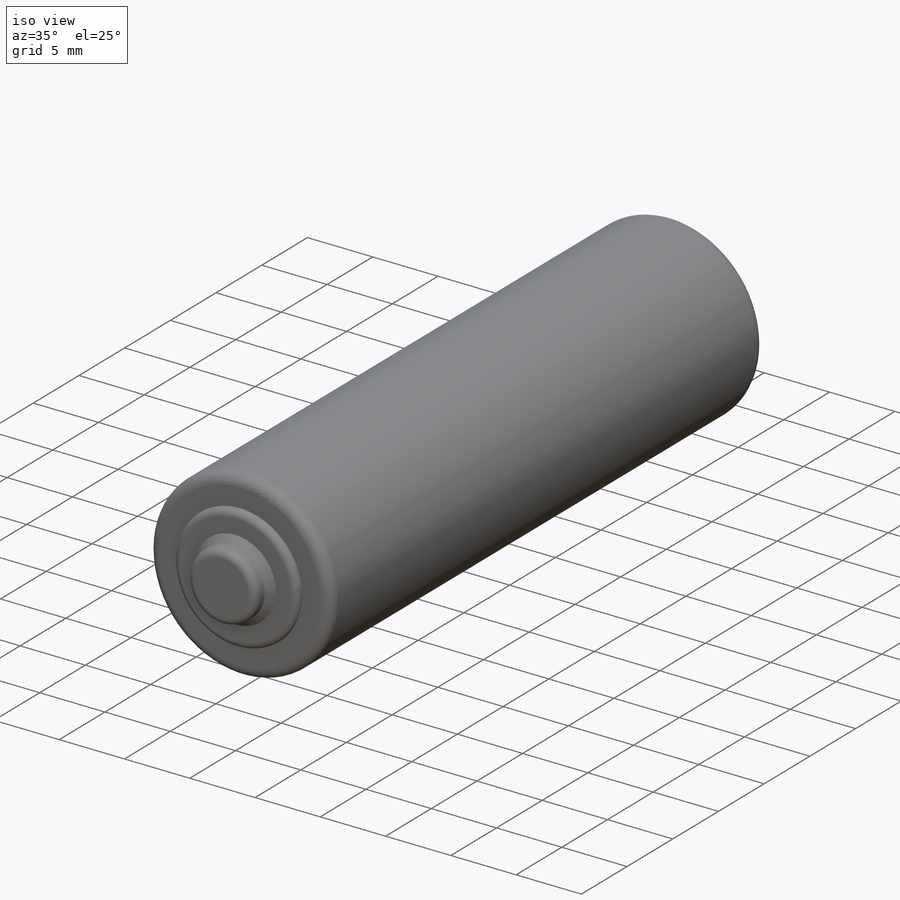
[diagram: iso view]
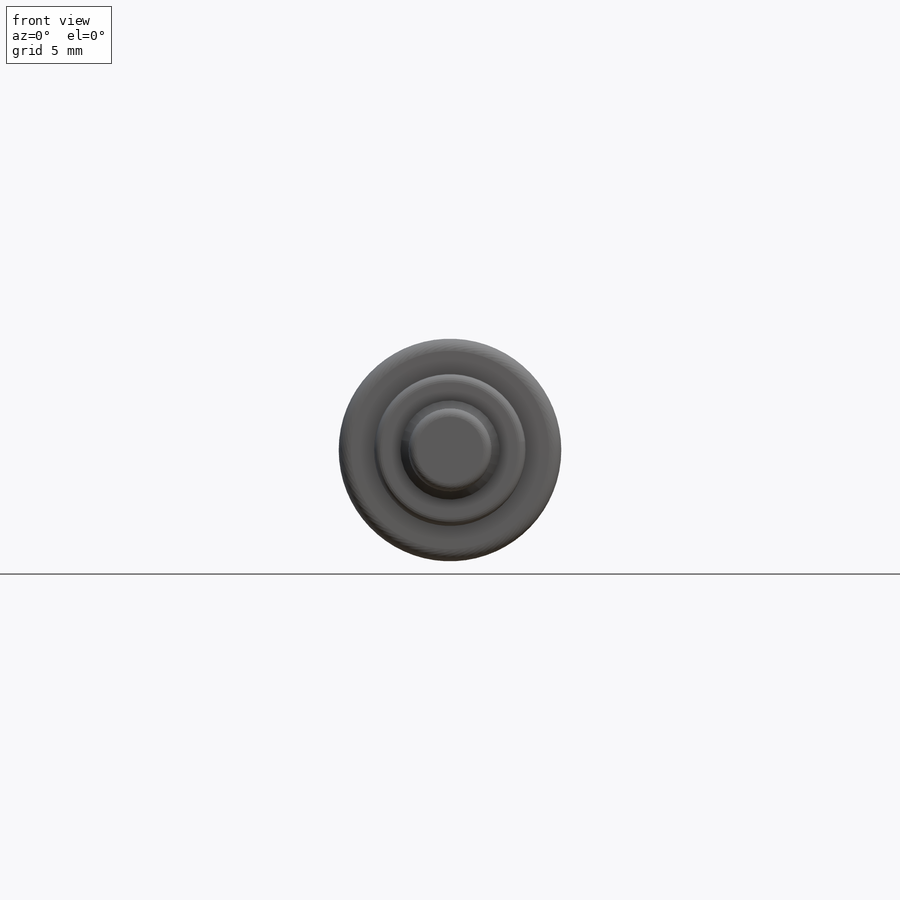
[diagram: front view]
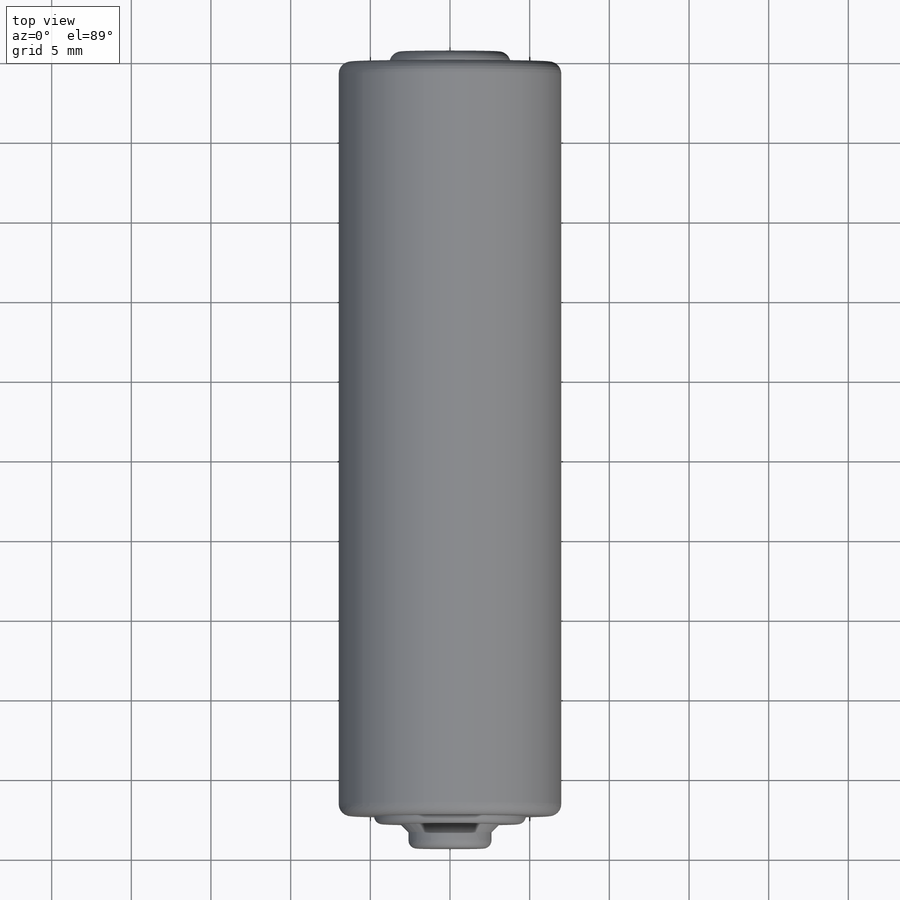
[diagram: top view]
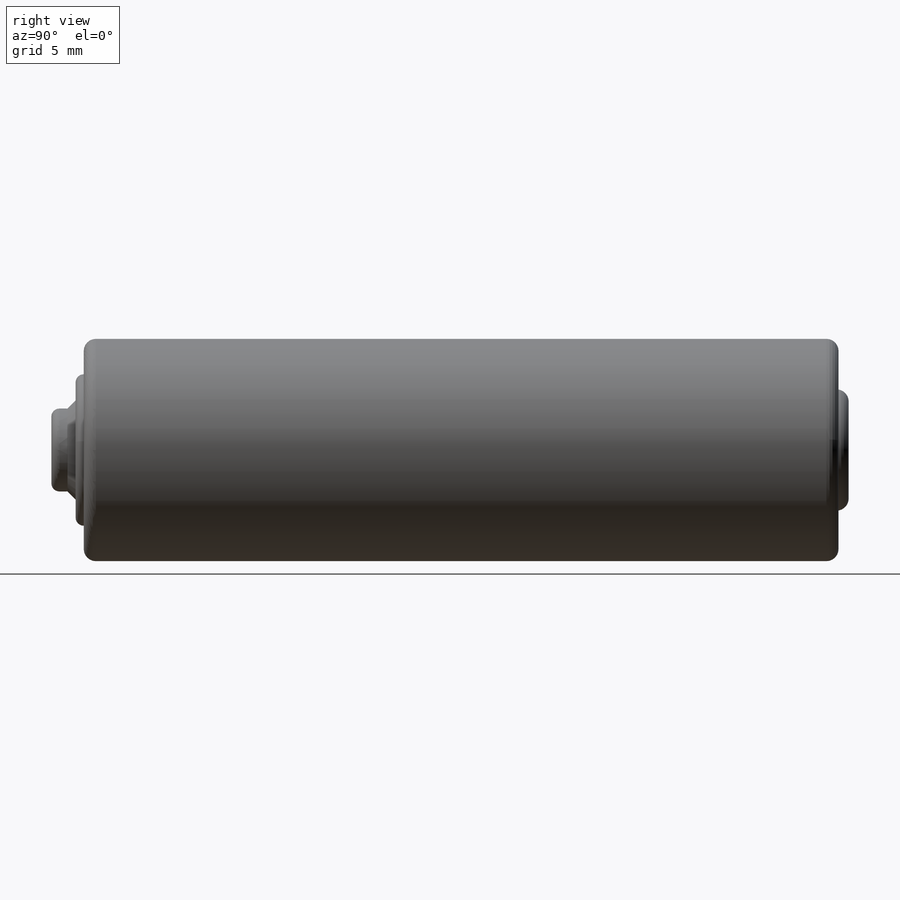
[diagram: right view]
SOLIDWORKS PART (.sldprt)
format: sldprt  version: not decoded by parser v0  size: 317,952 bytes
history: native  units: mm
features: fillet x6, sketch x4, extrude x4, plane x3, material x1, chamfer x1 (+8 scaffold rows collapsed)
feature tree (27):
  scaffold x8  (default folders/planes/origin — collapsed)
  material  "Materiale <non specificato>"
  plane  "Plane1"
  plane  "Plane2"
  plane  "Plane3"
  sketch  "Sketch1"  dims[D1=13.97mm]
  extrude  "Base-Extrude"  Depth=47.371mm
  sketch  "Sketch2"  dims[D1=9.525mm]
  extrude  "Boss-Extrude3"  Depth=0.508mm
  sketch  "Sketch4"  dims[D1=5.207mm]
  extrude  "Boss-Extrude4"  Depth=1.524mm
  sketch  "Sketch5"  dims[D1=7.62mm]
  extrude  "Boss-Extrude5"  Depth=0.635mm
  fillet  "Fillet1"  Radius=0.508mm
  fillet  "Fillet2"  Radius=0.508mm
  chamfer  "Chamfer1"  Distance=0.508mm Angle=45deg
  fillet  "Fillet3"  Radius=0.762mm
  fillet  "Fillet4"  Radius=0.762mm
  fillet  "Fillet8"  Radius=0.762mm
  fillet  "Fillet9"  Radius=0.762mm
decode coverage: 15 of 15 modeling features carry decoded parameters
note: suppression state not decoded; provenance and decode notes live in map.json
